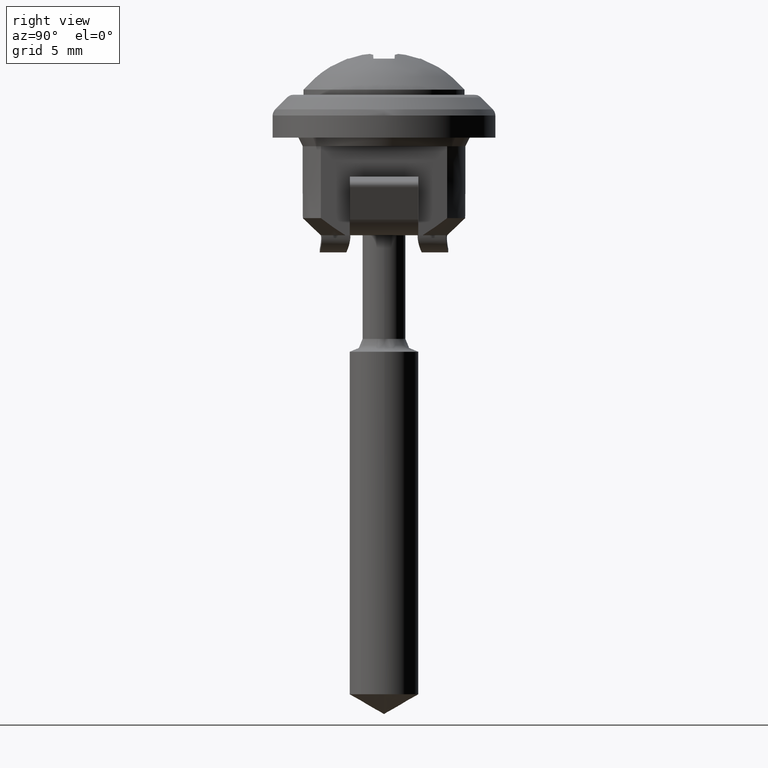
[diagram: clean part render]
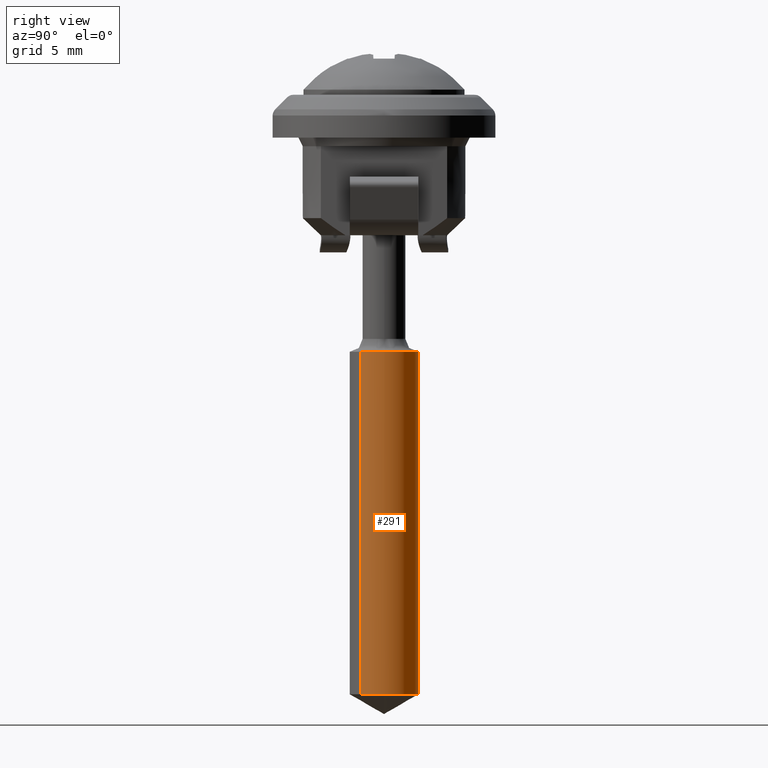
[diagram: same view with one face highlighted and labeled with its STEP entity id]
A machine part, right view. The second image highlights one B-rep face of the part: STEP entity #291.
In plain terms, the highlighted face is a freeform B-spline surface patch.
Its self-contained STEP definition (entity closure, byte-faithful):
#25=CARTESIAN_POINT('',(2.000000000000058,-2.449213E-016,-35.000000000001457));
#26=VERTEX_POINT('',#25);
#32=CARTESIAN_POINT('',(1.461278135000820,-1.365527669488460,-35.000000000001457));
#33=VERTEX_POINT('',#32);
#34=CARTESIAN_POINT('',(2.000000000000058,-2.449213E-016,-35.000000000001457));
#35=CARTESIAN_POINT('',(2.000022529779380,-0.140915788646491,-35.000000000001357));
#36=CARTESIAN_POINT('',(1.972582902947172,-0.399245016286654,-35.000000000001677));
#37=CARTESIAN_POINT('',(1.865939720617946,-0.744669748737319,-35.000000000001137));
#38=CARTESIAN_POINT('',(1.704359566766486,-1.067671701898822,-35.000000000002323));
#39=CARTESIAN_POINT('',(1.557507633074588,-1.262586030764244,-35.000000000000838));
#40=CARTESIAN_POINT('',(1.461278135000820,-1.365527669488460,-35.000000000001457));
#41=B_SPLINE_CURVE_WITH_KNOTS('',3,(#34,#35,#36,#37,#38,#39,#40),.UNSPECIFIED.,.F.,.U.,(4,1,1,1,4),(9.923131E-009,0.422743491771442,0.775022460100573,1.080342697789781,1.503086179633076),.UNSPECIFIED.);
#42=EDGE_CURVE('',#26,#33,#41,.T.);
#98=CARTESIAN_POINT('',(-1.461278135000820,1.365527669488460,-35.000000000001457));
#99=VERTEX_POINT('',#98);
#110=CARTESIAN_POINT('',(0.000000396939959,2.000000000000016,-35.000000000001457));
#111=VERTEX_POINT('',#110);
#112=CARTESIAN_POINT('',(-1.461278135000820,1.365527669488460,-35.000000000001457));
#113=CARTESIAN_POINT('',(-1.350594617280834,1.484024576685712,-35.000000000001421));
#114=CARTESIAN_POINT('',(-1.159496121187633,1.644144424096314,-35.000000000001592));
#115=CARTESIAN_POINT('',(-0.853841220453767,1.815903695160158,-35.000000000001343));
#116=CARTESIAN_POINT('',(-0.494928560566127,1.955680452918894,-35.000000000001577));
#117=CARTESIAN_POINT('',(-0.196290678284867,2.000073512705633,-35.000000000001393));
#118=CARTESIAN_POINT('',(0.000000396939959,2.000000000000016,-35.000000000001457));
#119=B_SPLINE_CURVE_WITH_KNOTS('',3,(#112,#113,#114,#115,#116,#117,#118),.UNSPECIFIED.,.F.,.U.,(4,1,1,1,4),(0.000000011602094,0.486438935696396,0.742460964327394,1.049677550075643,1.638526615176313),.UNSPECIFIED.);
#120=EDGE_CURVE('',#99,#111,#119,.T.);
#122=CARTESIAN_POINT('',(0.000000396939959,2.000000000000016,-35.000000000001457));
#123=CARTESIAN_POINT('',(0.196358579747189,2.000087698067359,-35.000000000001457));
#124=CARTESIAN_POINT('',(0.531738304925421,1.950188705849687,-35.000000000001499));
#125=CARTESIAN_POINT('',(0.948648632512924,1.774474503584598,-35.000000000001428));
#126=CARTESIAN_POINT('',(1.283199050538098,1.550930715162709,-35.000000000001378));
#127=CARTESIAN_POINT('',(1.591713923337485,1.242483538605780,-35.000000000001620));
#128=CARTESIAN_POINT('',(1.823052777175489,0.861800544181524,-35.000000000001187));
#129=CARTESIAN_POINT('',(1.967399885217757,0.433589498179817,-35.000000000002103));
#130=CARTESIAN_POINT('',(2.000033411269763,0.155443526981832,-35.000000000000632));
#131=CARTESIAN_POINT('',(2.000000000000058,-2.449213E-016,-35.000000000001457));
#132=B_SPLINE_CURVE_WITH_KNOTS('',3,(#122,#123,#124,#125,#126,#127,#128,#129,#130,#131),.UNSPECIFIED.,.F.,.U.,(4,1,1,1,1,1,1,4),(0.000000038001797,0.589048627535775,1.006302128702715,1.349921911619519,1.791690183834755,2.307121106263391,2.675285291107686,3.141612142028853),.UNSPECIFIED.);
#133=EDGE_CURVE('',#111,#26,#132,.T.);
#157=CARTESIAN_POINT('',(1.461278206727064,-1.365527737836028,-15.000000000000110));
#158=VERTEX_POINT('',#157);
#194=CARTESIAN_POINT('',(-1.461278206727064,1.365527737836028,-15.000000000000099));
#195=VERTEX_POINT('',#194);
#206=CARTESIAN_POINT('',(-1.461278206727064,1.365527737836028,-15.000000000000099));
#207=CARTESIAN_POINT('',(-1.461278135000820,1.365527669488460,-35.000000000001457));
#208=QUASI_UNIFORM_CURVE('',1,(#206,#207),.UNSPECIFIED.,.F.,.U.);
#209=EDGE_CURVE('',#195,#99,#208,.T.);
#214=CARTESIAN_POINT('',(1.461278206727064,-1.365527737836028,-15.000000000000110));
#215=CARTESIAN_POINT('',(1.461278135000820,-1.365527669488460,-35.000000000001457));
#216=QUASI_UNIFORM_CURVE('',1,(#214,#215),.UNSPECIFIED.,.F.,.U.);
#217=EDGE_CURVE('',#158,#33,#216,.T.);
#222=CARTESIAN_POINT('',(-1.461278227660982,1.365527715340922,-14.499999999999950));
#223=CARTESIAN_POINT('',(-0.095750512320059,2.826805943001905,-14.499999999999957));
#224=CARTESIAN_POINT('',(1.365527715340922,1.461278227660982,-14.499999999999950));
#225=CARTESIAN_POINT('',(2.826805943001905,0.095750512320059,-14.499999999999957));
#226=CARTESIAN_POINT('',(1.461278227660982,-1.365527715340922,-14.499999999999950));
#227=CARTESIAN_POINT('',(-1.461278227660982,1.365527715340922,-35.512500000001502));
#228=CARTESIAN_POINT('',(-0.095750512320059,2.826805943001905,-35.512500000001495));
#229=CARTESIAN_POINT('',(1.365527715340922,1.461278227660982,-35.512500000001502));
#230=CARTESIAN_POINT('',(2.826805943001905,0.095750512320059,-35.512500000001495));
#231=CARTESIAN_POINT('',(1.461278227660982,-1.365527715340922,-35.512500000001502));
#239=(BOUNDED_SURFACE()B_SPLINE_SURFACE(2,1,((#222,#227),(#223,#228),(#224,#229),(#225,#230),(#226,#231)),.UNSPECIFIED.,.F.,.F.,.U.)B_SPLINE_SURFACE_WITH_KNOTS((3,2,3),(2,2),(0.0,3.313708498984851,6.627416997969702),(0.0,21.012500000001559),.UNSPECIFIED.)GEOMETRIC_REPRESENTATION_ITEM()RATIONAL_B_SPLINE_SURFACE(((1.0,1.0),(0.707106781186548,0.707106781186548),(1.0,1.0),(0.707106781186548,0.707106781186548),(1.0,1.0)))REPRESENTATION_ITEM('')SURFACE());
#240=CARTESIAN_POINT('',(2.000000000000055,0.0,-15.0));
#241=VERTEX_POINT('',#240);
#242=CARTESIAN_POINT('',(2.000000000000055,0.0,-15.0));
#243=CARTESIAN_POINT('',(2.000121014796716,-0.211386572942963,-15.000000000000041));
#244=CARTESIAN_POINT('',(1.943609820884154,-0.563594758202587,-15.000000000000020));
#245=CARTESIAN_POINT('',(1.736870168039858,-1.023058857337911,-15.000000000000130));
#246=CARTESIAN_POINT('',(1.562857336592918,-1.256868917426264,-15.000000000000080));
#247=CARTESIAN_POINT('',(1.461278206727064,-1.365527737836028,-15.000000000000110));
#248=B_SPLINE_CURVE_WITH_KNOTS('',3,(#242,#243,#244,#245,#246,#247),.UNSPECIFIED.,.F.,.U.,(4,1,1,4),(9.924238E-009,0.634118707373590,1.056856067086865,1.503086217841005),.UNSPECIFIED.);
#249=EDGE_CURVE('',#241,#158,#248,.T.);
#250=ORIENTED_EDGE('',*,*,#249,.T.);
#251=ORIENTED_EDGE('',*,*,#217,.T.);
#252=ORIENTED_EDGE('',*,*,#42,.F.);
#253=ORIENTED_EDGE('',*,*,#133,.F.);
#254=ORIENTED_EDGE('',*,*,#120,.F.);
#255=ORIENTED_EDGE('',*,*,#209,.F.);
#256=CARTESIAN_POINT('',(-0.025117570299439,1.999842270691993,-14.999999999999989));
#257=VERTEX_POINT('',#256);
#258=CARTESIAN_POINT('',(-1.461278206727064,1.365527737836028,-15.000000000000099));
#259=CARTESIAN_POINT('',(-1.380962665581428,1.451489686048195,-15.000000000000110));
#260=CARTESIAN_POINT('',(-1.198820496784741,1.614812532971289,-15.000000000000030));
#261=CARTESIAN_POINT('',(-0.925088889295092,1.781981706913034,-15.000000000000091));
#262=CARTESIAN_POINT('',(-0.536986734876167,1.944727049286602,-15.000000000000069));
#263=CARTESIAN_POINT('',(-0.243608815479505,1.997244046682463,-14.999999999999940));
#264=CARTESIAN_POINT('',(-0.025117570299439,1.999842270691993,-14.999999999999989));
#265=B_SPLINE_CURVE_WITH_KNOTS('',3,(#258,#259,#260,#261,#262,#263,#264),.UNSPECIFIED.,.F.,.U.,(4,1,1,1,4),(0.000000010743790,0.352932703611902,0.731078706305248,0.957956506050011,1.613407520649751),.UNSPECIFIED.);
#266=EDGE_CURVE('',#195,#257,#265,.T.);
#267=ORIENTED_EDGE('',*,*,#266,.T.);
#268=CARTESIAN_POINT('',(1.999368377924439,0.050260191171898,-14.999999999999989));
#269=VERTEX_POINT('',#268);
#270=CARTESIAN_POINT('',(-0.025117570299439,1.999842270691993,-14.999999999999989));
#271=CARTESIAN_POINT('',(0.129071547195035,2.001809487316450,-14.999999999999959));
#272=CARTESIAN_POINT('',(0.421626223085369,1.971492458799793,-15.000000000000011));
#273=CARTESIAN_POINT('',(0.824081534669952,1.837141422140270,-15.000000000000030));
#274=CARTESIAN_POINT('',(1.191415576769701,1.625324014825156,-14.999999999999970));
#275=CARTESIAN_POINT('',(1.469920298900325,1.372988663154832,-14.999999999999970));
#276=CARTESIAN_POINT('',(1.701911636695957,1.069121634622499,-15.000000000000030));
#277=CARTESIAN_POINT('',(1.845533141193080,0.794344509551565,-14.999999999999989));
#278=CARTESIAN_POINT('',(1.962231040186851,0.438990859232728,-14.999999999999959));
#279=CARTESIAN_POINT('',(1.995522389243284,0.204413187545048,-15.000000000000140));
#280=CARTESIAN_POINT('',(1.999368377924439,0.050260191171898,-14.999999999999989));
#281=B_SPLINE_CURVE_WITH_KNOTS('',3,(#270,#271,#272,#273,#274,#275,#276,#277,#278,#279,#280),.UNSPECIFIED.,.F.,.U.,(4,1,1,1,1,1,1,1,4),(0.000000039314167,0.462598775801075,0.876507474795147,1.266072815077819,1.728659550115418,1.996478345442356,2.410390893463367,2.653867769737599,3.116464643544247),.UNSPECIFIED.);
#282=EDGE_CURVE('',#257,#269,#281,.T.);
#283=ORIENTED_EDGE('',*,*,#282,.T.);
#284=CARTESIAN_POINT('',(1.999368377924439,0.050260191171898,-14.999999999999989));
#285=CARTESIAN_POINT('',(2.000000000000055,0.0,-15.0));
#286=QUASI_UNIFORM_CURVE('',1,(#284,#285),.UNSPECIFIED.,.F.,.U.);
#287=EDGE_CURVE('',#269,#241,#286,.T.);
#288=ORIENTED_EDGE('',*,*,#287,.T.);
#289=EDGE_LOOP('',(#250,#251,#252,#253,#254,#255,#267,#283,#288));
#290=FACE_OUTER_BOUND('',#289,.T.);
#291=ADVANCED_FACE('',(#290),#239,.T.);